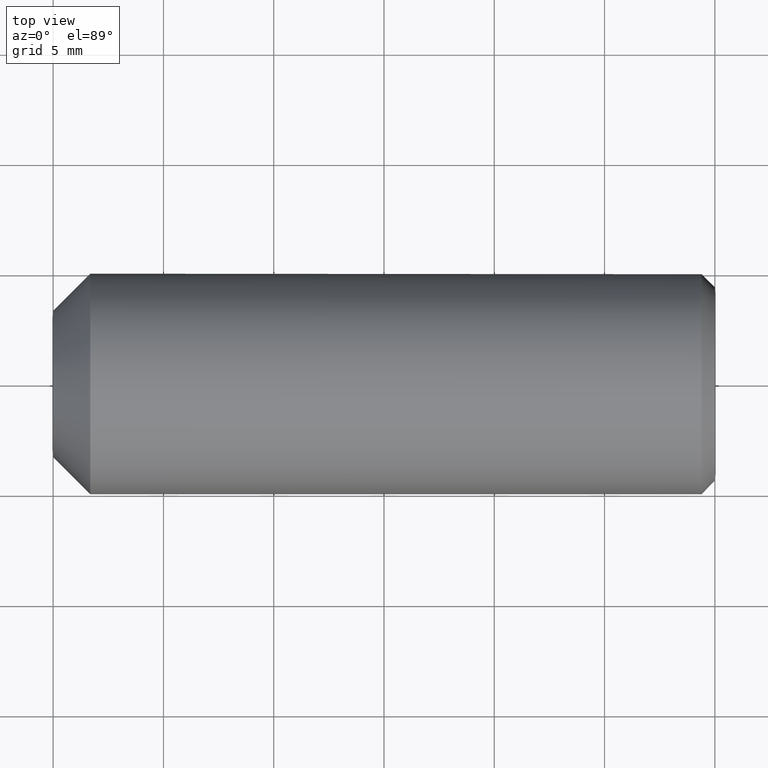
[diagram: clean part render]
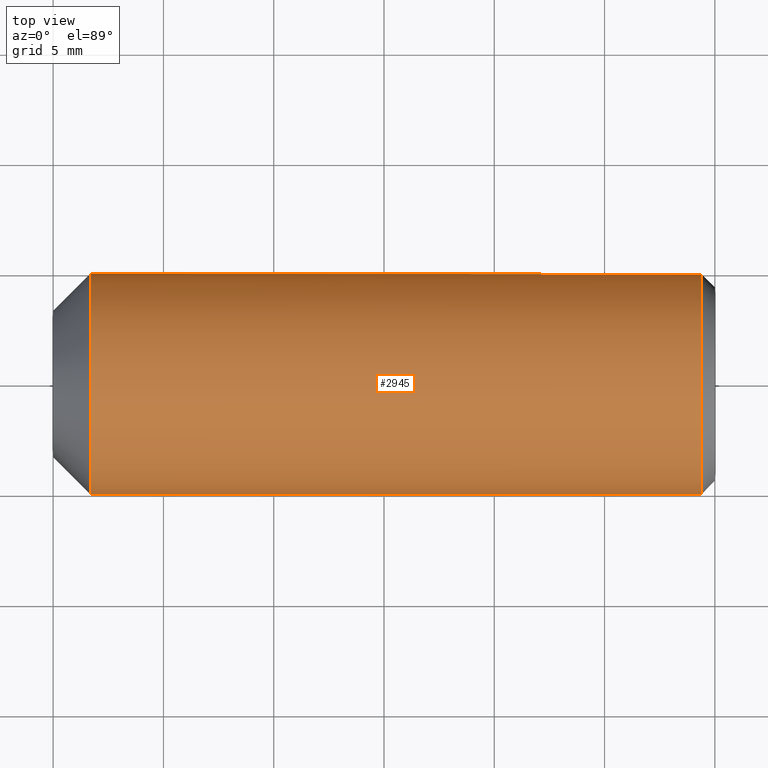
[diagram: same view with one face highlighted and labeled with its STEP entity id]
A machine part, top view. The second image highlights one B-rep face of the part: STEP entity #2945.
In plain terms, the highlighted cylindrical surface (bore or boss wall) has radius 5 mm, axis along (-1, -0, -0).
Its self-contained STEP definition (entity closure, byte-faithful):
#59 = EDGE_LOOP ( 'NONE', ( #17161 ) ) ;
#170 = EDGE_LOOP ( 'NONE', ( #1025 ) ) ;
#686 = CARTESIAN_POINT ( 'NONE',  ( 30.00000000000000000, 0.0000000000000000000, 0.0000000000000000000 ) ) ;
#1025 = ORIENTED_EDGE ( 'NONE', *, *, #15397, .F. ) ;
#1268 = CIRCLE ( 'NONE', #8138, 5.000000000000000000 ) ;
#1941 = CARTESIAN_POINT ( 'NONE',  ( 1.679999999999987500, -4.999999999999999100, 0.0000000000000000000 ) ) ;
#2945 = ADVANCED_FACE ( 'NONE', ( #5804, #11255 ), #14543, .T. ) ;
#3129 = DIRECTION ( 'NONE',  ( 0.0000000000000000000, 0.0000000000000000000, -1.000000000000000000 ) ) ;
#5059 = VERTEX_POINT ( 'NONE', #11730 ) ;
#5804 = FACE_OUTER_BOUND ( 'NONE', #59, .T. ) ;
#8138 = AXIS2_PLACEMENT_3D ( 'NONE', #14327, #10021, #3129 ) ;
#9270 = DIRECTION ( 'NONE',  ( -4.336808689942018400E-017, -1.000000000000000000, 0.0000000000000000000 ) ) ;
#9662 = CIRCLE ( 'NONE', #17155, 4.999999999999999100 ) ;
#10021 = DIRECTION ( 'NONE',  ( -1.000000000000000000, 0.0000000000000000000, 0.0000000000000000000 ) ) ;
#10322 = DIRECTION ( 'NONE',  ( 0.0000000000000000000, 0.0000000000000000000, 1.000000000000000000 ) ) ;
#11255 = FACE_OUTER_BOUND ( 'NONE', #170, .T. ) ;
#11666 = EDGE_CURVE ( 'NONE', #5059, #5059, #1268, .T. ) ;
#11730 = CARTESIAN_POINT ( 'NONE',  ( 29.39999999999999500, 0.0000000000000000000, -5.000000000000000000 ) ) ;
#14327 = CARTESIAN_POINT ( 'NONE',  ( 29.39999999999999500, 0.0000000000000000000, 0.0000000000000000000 ) ) ;
#14543 = CYLINDRICAL_SURFACE ( 'NONE', #16263, 5.000000000000000000 ) ;
#15397 = EDGE_CURVE ( 'NONE', #15725, #15725, #9662, .T. ) ;
#15725 = VERTEX_POINT ( 'NONE', #1941 ) ;
#16262 = CARTESIAN_POINT ( 'NONE',  ( 1.679999999999987700, -4.538988261647290200E-017, 0.0000000000000000000 ) ) ;
#16263 = AXIS2_PLACEMENT_3D ( 'NONE', #686, #17413, #10322 ) ;
#17155 = AXIS2_PLACEMENT_3D ( 'NONE', #16262, #17625, #9270 ) ;
#17161 = ORIENTED_EDGE ( 'NONE', *, *, #11666, .T. ) ;
#17413 = DIRECTION ( 'NONE',  ( -1.000000000000000000, -0.0000000000000000000, -0.0000000000000000000 ) ) ;
#17625 = DIRECTION ( 'NONE',  ( -1.000000000000000000, 2.701778727171025800E-017, -0.0000000000000000000 ) ) ;